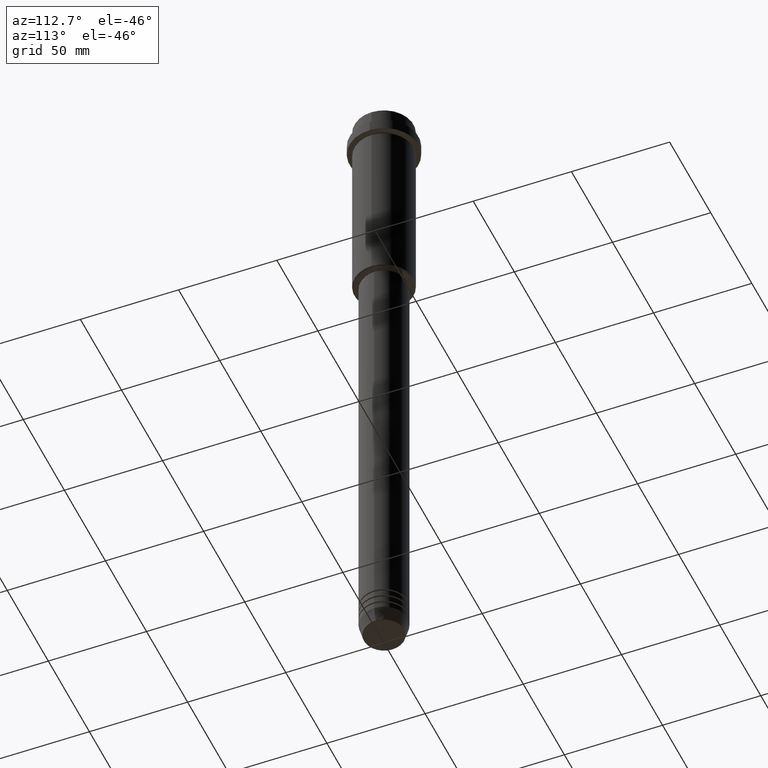
[diagram: clean part render]
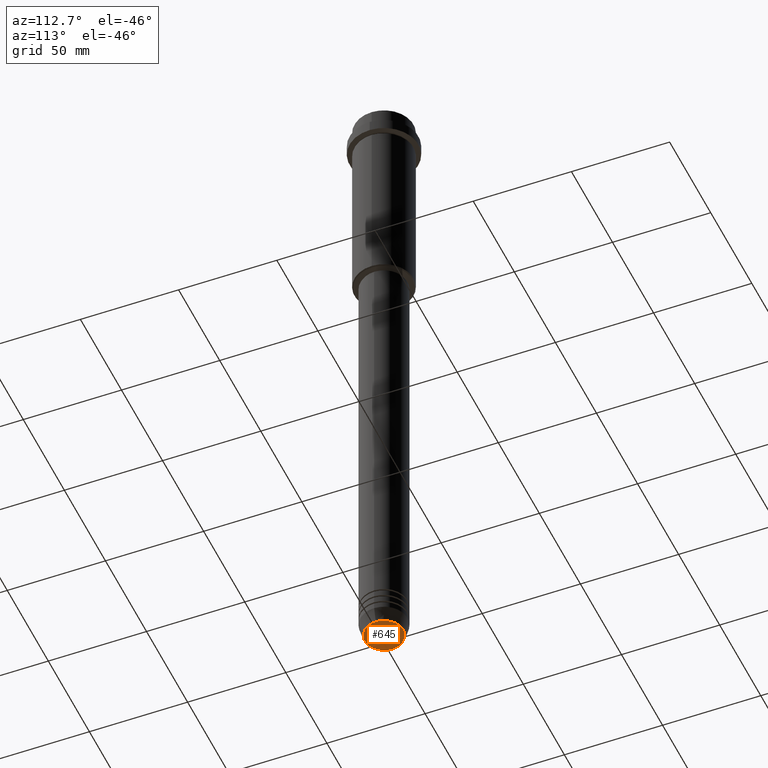
[diagram: same view with one face highlighted and labeled with its STEP entity id]
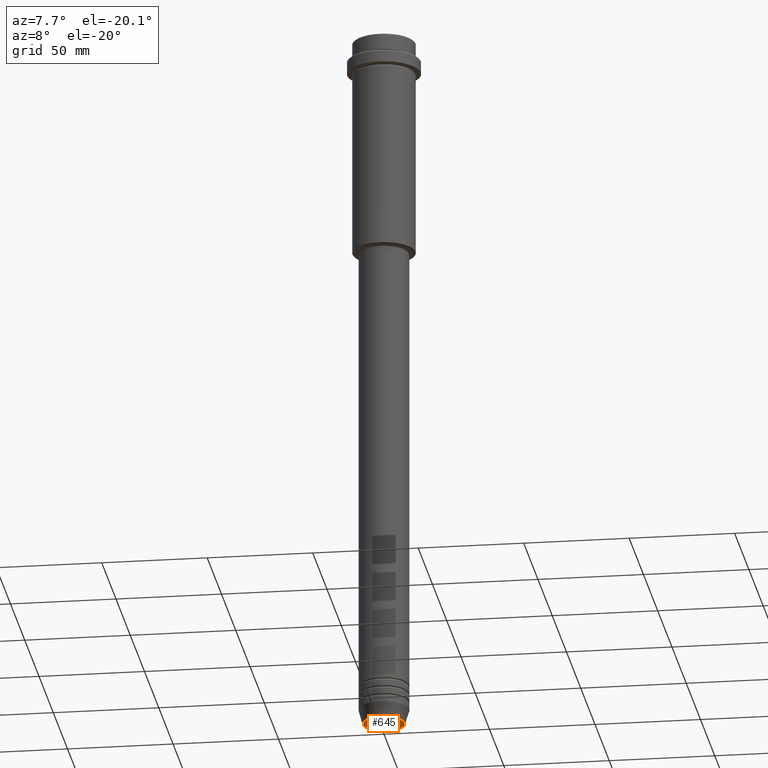
[diagram: same view with one face highlighted and labeled with its STEP entity id]
A machine part, auxiliary view. The second image highlights one B-rep face of the part: STEP entity #645.
A second angle (auxiliary view) of the same face is appended — the face is thin or edge-on in the first view.
In plain terms, the highlighted planar face has unit normal (0, -0, 1).
Its self-contained STEP definition (entity closure, byte-faithful):
#7 = AXIS2_PLACEMENT_3D ( 'NONE', #800, #370, #146 ) ;
#58 = DIRECTION ( 'NONE',  ( 1.000000000000000000, 0.000000000000000000, 0.000000000000000000 ) ) ;
#63 = DIRECTION ( 'NONE',  ( 0.000000000000000000, 0.000000000000000000, -1.000000000000000000 ) ) ;
#146 = DIRECTION ( 'NONE',  ( 1.000000000000000000, 0.000000000000000000, 0.000000000000000000 ) ) ;
#329 = AXIS2_PLACEMENT_3D ( 'NONE', #507, #63, #1278 ) ;
#359 = CARTESIAN_POINT ( 'NONE',  ( 9.740692158992658278, 0.000000000000000000, -340.0000000000000000 ) ) ;
#370 = DIRECTION ( 'NONE',  ( 0.000000000000000000, 0.000000000000000000, -1.000000000000000000 ) ) ;
#377 = ORIENTED_EDGE ( 'NONE', *, *, #1025, .T. ) ;
#464 = VERTEX_POINT ( 'NONE', #359 ) ;
#507 = CARTESIAN_POINT ( 'NONE',  ( 0.000000000000000000, 0.000000000000000000, -340.0000000000000000 ) ) ;
#559 = EDGE_CURVE ( 'NONE', #464, #930, #1118, .T. ) ;
#645 = ADVANCED_FACE ( 'NONE', ( #963 ), #1273, .F. ) ;
#713 = CARTESIAN_POINT ( 'NONE',  ( 0.000000000000000000, 0.000000000000000000, -340.0000000000000000 ) ) ;
#726 = ORIENTED_EDGE ( 'NONE', *, *, #559, .T. ) ;
#736 = DIRECTION ( 'NONE',  ( 0.000000000000000000, -0.000000000000000000, 1.000000000000000000 ) ) ;
#800 = CARTESIAN_POINT ( 'NONE',  ( 0.000000000000000000, 0.000000000000000000, -340.0000000000000000 ) ) ;
#930 = VERTEX_POINT ( 'NONE', #1338 ) ;
#963 = FACE_OUTER_BOUND ( 'NONE', #1162, .T. ) ;
#993 = CIRCLE ( 'NONE', #329, 9.740692158992658278 ) ;
#1025 = EDGE_CURVE ( 'NONE', #930, #464, #993, .T. ) ;
#1118 = CIRCLE ( 'NONE', #7, 9.740692158992658278 ) ;
#1162 = EDGE_LOOP ( 'NONE', ( #726, #377 ) ) ;
#1273 = PLANE ( 'NONE',  #1309 ) ;
#1278 = DIRECTION ( 'NONE',  ( 1.000000000000000000, 0.000000000000000000, 0.000000000000000000 ) ) ;
#1309 = AXIS2_PLACEMENT_3D ( 'NONE', #713, #736, #58 ) ;
#1338 = CARTESIAN_POINT ( 'NONE',  ( -9.740692158992658278, 1.222463696683474999E-15, -340.0000000000000000 ) ) ;